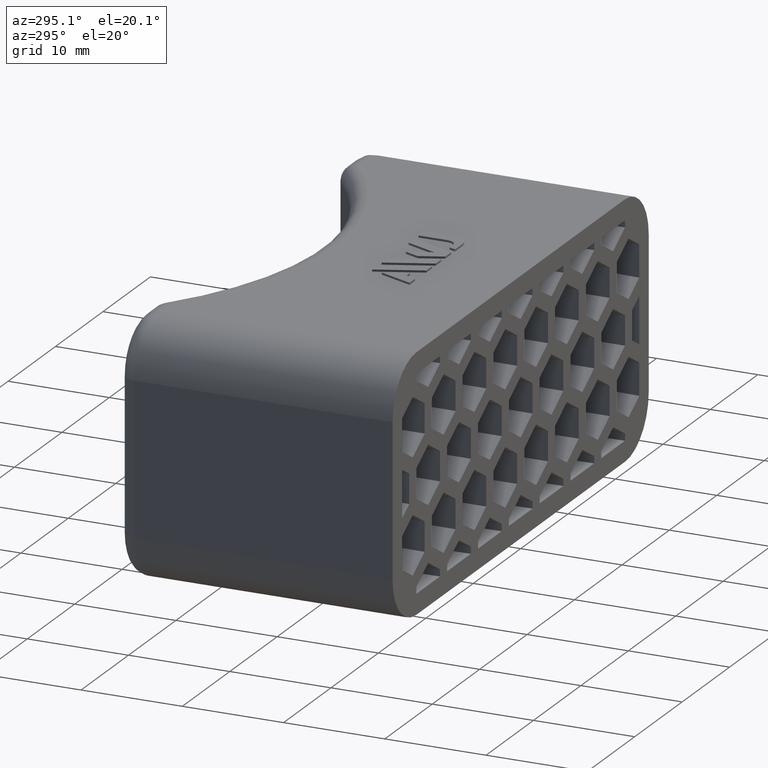
[diagram: clean part render]
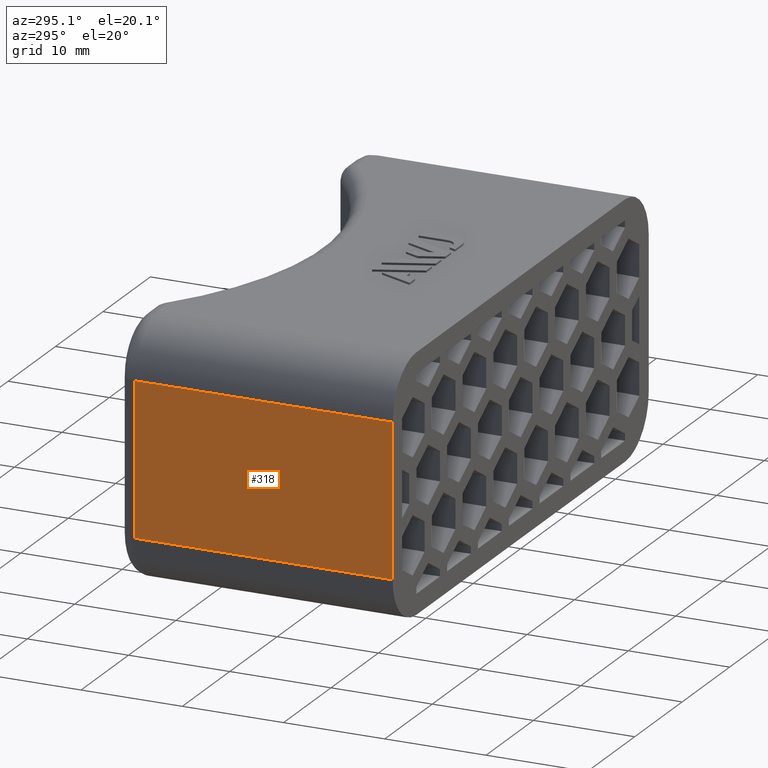
[diagram: same view with one face highlighted and labeled with its STEP entity id]
A machine part, auxiliary view. The second image highlights one B-rep face of the part: STEP entity #318.
In plain terms, the highlighted planar face has unit normal (-1, 0, 0).
Its self-contained STEP definition (entity closure, byte-faithful):
#318 = ADVANCED_FACE( '', ( #934 ), #935, .T. );
#934 = FACE_OUTER_BOUND( '', #1634, .T. );
#935 = PLANE( '', #1635 );
#1634 = EDGE_LOOP( '', ( #3793, #3794, #3795, #3796 ) );
#1635 = AXIS2_PLACEMENT_3D( '', #3797, #3798, #3799 );
#3793 = ORIENTED_EDGE( '', *, *, #4744, .T. );
#3794 = ORIENTED_EDGE( '', *, *, #4716, .T. );
#3795 = ORIENTED_EDGE( '', *, *, #4741, .T. );
#3796 = ORIENTED_EDGE( '', *, *, #4662, .F. );
#3797 = CARTESIAN_POINT( '', ( -27.0000000000000, 27.0000000000000, -12.5000000000000 ) );
#3798 = DIRECTION( '', ( -1.00000000000000, 6.93889390390723E-017, 0.000000000000000 ) );
#3799 = DIRECTION( '', ( 6.93889390390723E-017, 1.00000000000000, 0.000000000000000 ) );
#4662 = EDGE_CURVE( '', #5709, #5711, #5712, .T. );
#4716 = EDGE_CURVE( '', #5803, #5808, #5810, .F. );
#4741 = EDGE_CURVE( '', #5808, #5711, #5847, .T. );
#4744 = EDGE_CURVE( '', #5709, #5803, #5851, .F. );
#5709 = VERTEX_POINT( '', #7298 );
#5711 = VERTEX_POINT( '', #7300 );
#5712 = LINE( '', #7301, #7302 );
#5803 = VERTEX_POINT( '', #7437 );
#5808 = VERTEX_POINT( '', #7443 );
#5810 = LINE( '', #7445, #7446 );
#5847 = LINE( '', #7492, #7493 );
#5851 = LINE( '', #7498, #7499 );
#7298 = CARTESIAN_POINT( '', ( -27.0000000000000, 0.000000000000000, 7.50000000000003 ) );
#7300 = CARTESIAN_POINT( '', ( -27.0000000000000, 6.93889390390723E-015, -7.49999999999999 ) );
#7301 = CARTESIAN_POINT( '', ( -27.0000000000000, 0.000000000000000, -12.5000000000000 ) );
#7302 = VECTOR( '', #8902, 1000.00000000000 );
#7437 = CARTESIAN_POINT( '', ( -27.0000000000000, 25.5000000000000, 7.50000000000000 ) );
#7443 = CARTESIAN_POINT( '', ( -27.0000000000000, 25.5000000000000, -7.50000000000000 ) );
#7445 = CARTESIAN_POINT( '', ( -27.0000000000000, 25.5000000000000, -12.5000000000000 ) );
#7446 = VECTOR( '', #8972, 1000.00000000000 );
#7492 = CARTESIAN_POINT( '', ( -27.0000000000000, 27.0000000000000, -7.50000000000000 ) );
#7493 = VECTOR( '', #9027, 1000.00000000000 );
#7498 = CARTESIAN_POINT( '', ( -27.0000000000000, 27.0000000000000, 7.50000000000000 ) );
#7499 = VECTOR( '', #9032, 1000.00000000000 );
#8902 = DIRECTION( '', ( -2.95286543775260E-032, 0.000000000000000, -1.00000000000000 ) );
#8972 = DIRECTION( '', ( 0.000000000000000, 0.000000000000000, 1.00000000000000 ) );
#9027 = DIRECTION( '', ( -6.93889390390723E-017, -1.00000000000000, 0.000000000000000 ) );
#9032 = DIRECTION( '', ( -6.93889390390723E-017, -1.00000000000000, 0.000000000000000 ) );